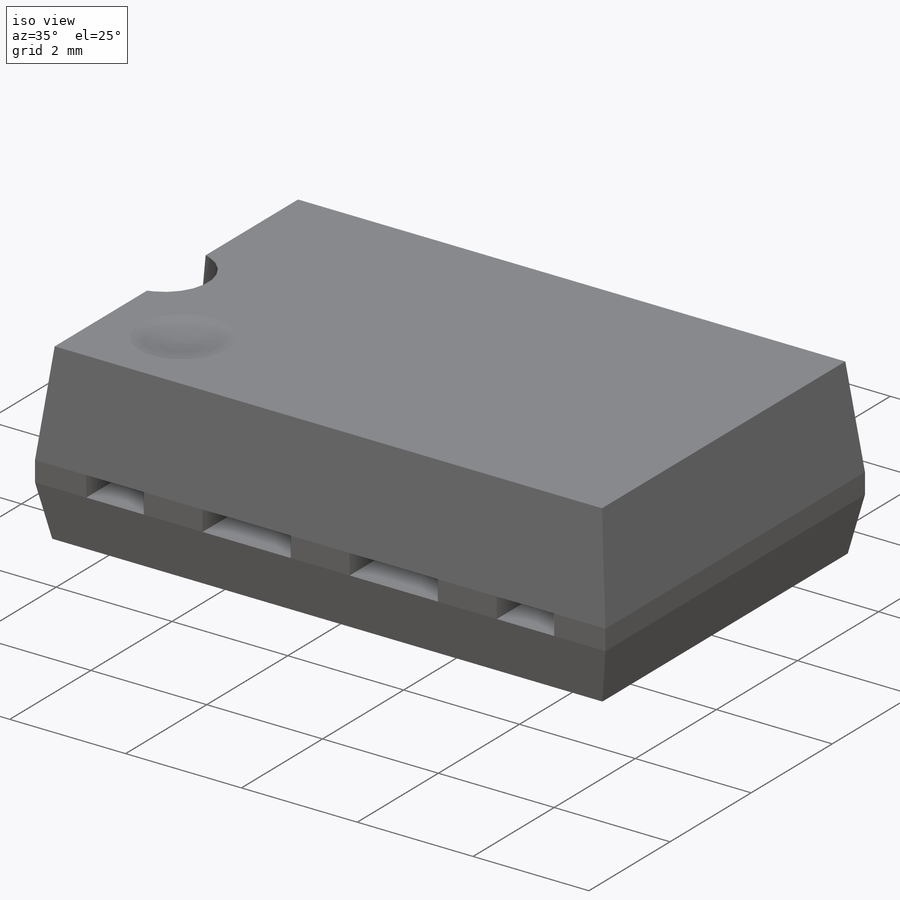
[diagram: iso view]
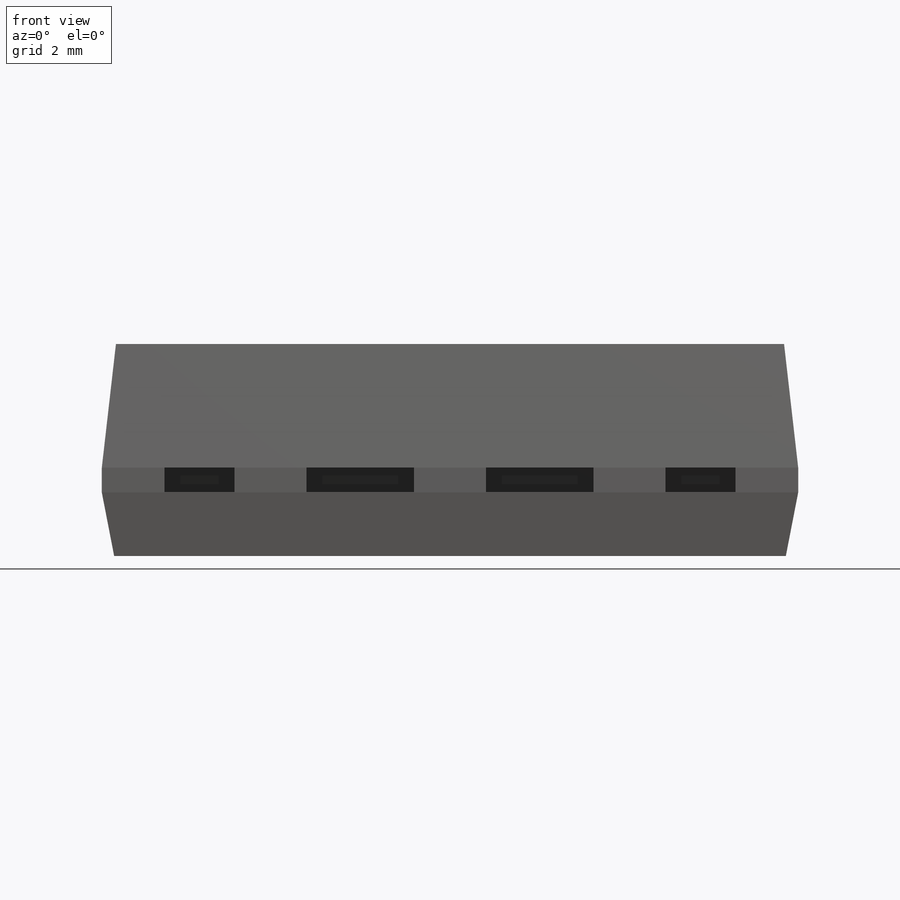
[diagram: front view]
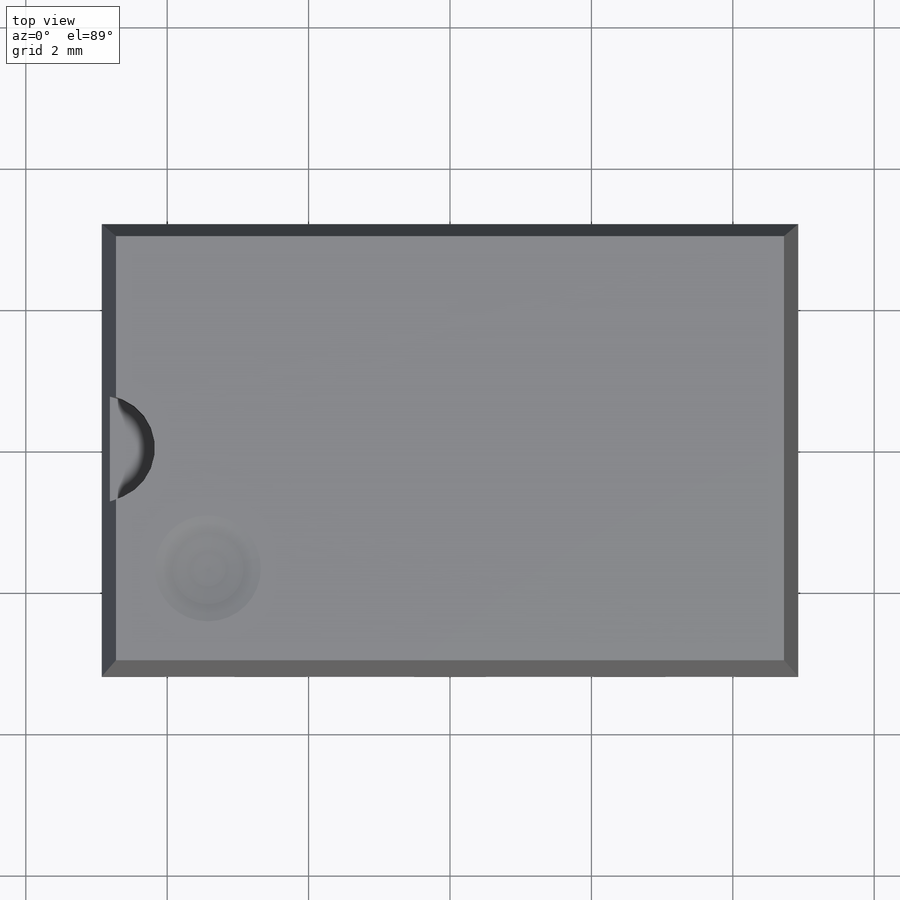
[diagram: top view]
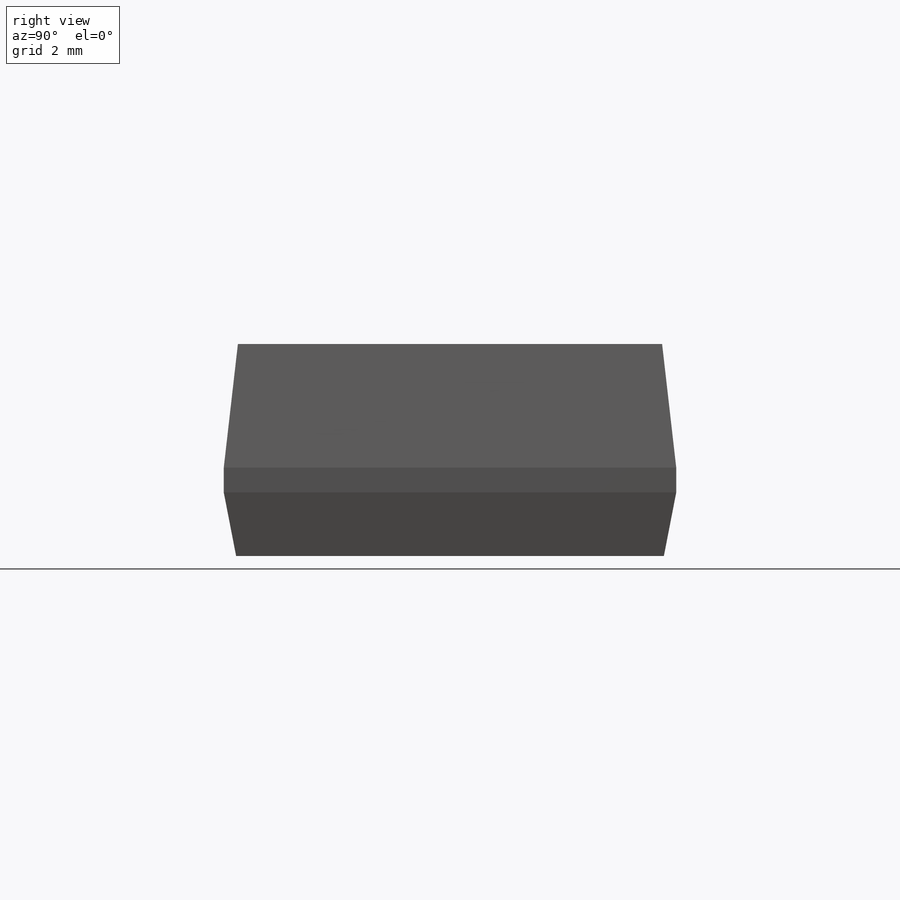
[diagram: right view]
SOLIDWORKS PART (.sldprt)
format: sldprt  version: not decoded by parser v0  size: 305,664 bytes
history: native  units: mm
features: sketch x10, plane x3, cut_extrude x2, material x1, extrude x1, cut_revolve x1, mirror x1 (+16 scaffold rows collapsed)
feature tree (35):
  scaffold x16  (default folders/planes/origin — collapsed)
  material  "Material <not specified>"
  sketch  "Sketch1"  dims[D1=9.85mm D2=6.4mm]
  plane  "Plane1"  Offset=1.75mm
  sketch  "Sketch2"  dims[c1.D1=6.0mm c1.D2=9.45mm c1.D3=0.2mm c2.D1=0.2mm c2.D2=0.2mm]
  sketch  "Sketch3"  dims[D1=0.0mm]
  extrude  "Extrude1"  Depth=0.35mm
  sketch  "Sketch4"  dims[D1=0.0mm]
  plane  "Plane2"  Offset=1.25mm
  sketch  "Sketch5"  dims[c1.D1=9.5mm c1.D2=5.9mm c2.D1=0.175mm c2.D2=0.175mm]
  sketch  "Sketch7"  dims[D1=1.5mm]
  cut_extrude  "Extrude2"  Depth=0.75mm
  sketch  "Sketch8"  dims[D1=1.5mm D2=1.3mm D3=1.3mm]
  sketch  "Sketch9"
  plane  "Plane3"
  sketch  "Sketch10"  dims[D1=0.25mm]
  cut_revolve  "Cut-Revolve1"  Angle=360deg
  sketch  "Sketch11"  dims[D1=2.54mm D2=2.54mm D3=2.54mm D4=1.27mm D5=1.524mm D6=1.524mm D7=1.524mm D8=1.524mm D9=0.5334mm D10=0.5334mm]
  cut_extrude  "Extrude3"  Depth=1mm
  mirror  "Mirror1"
decode coverage: 13 of 15 modeling features carry decoded parameters
note: suppression state not decoded; provenance and decode notes live in map.json
